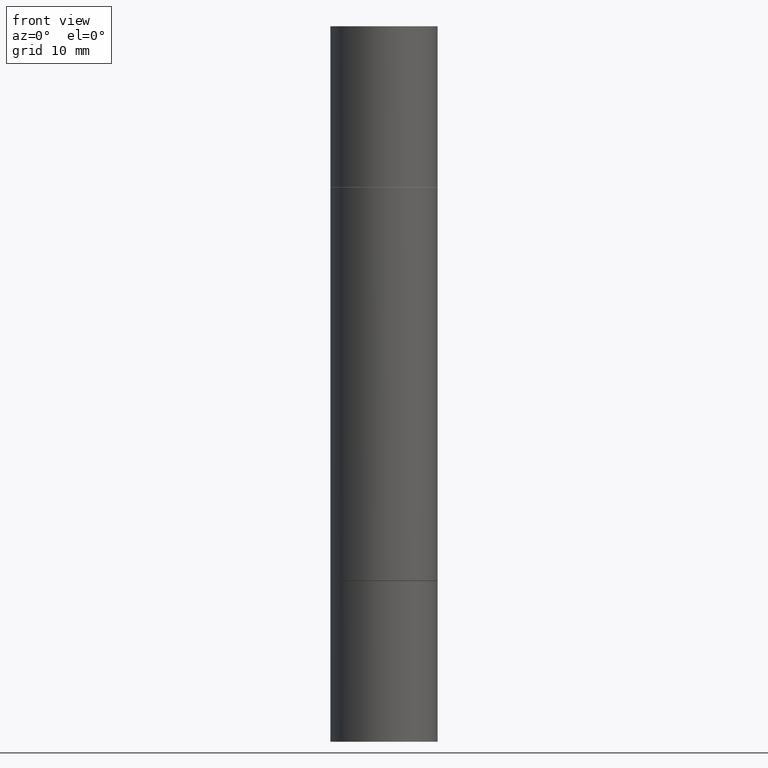
[diagram: clean part render]
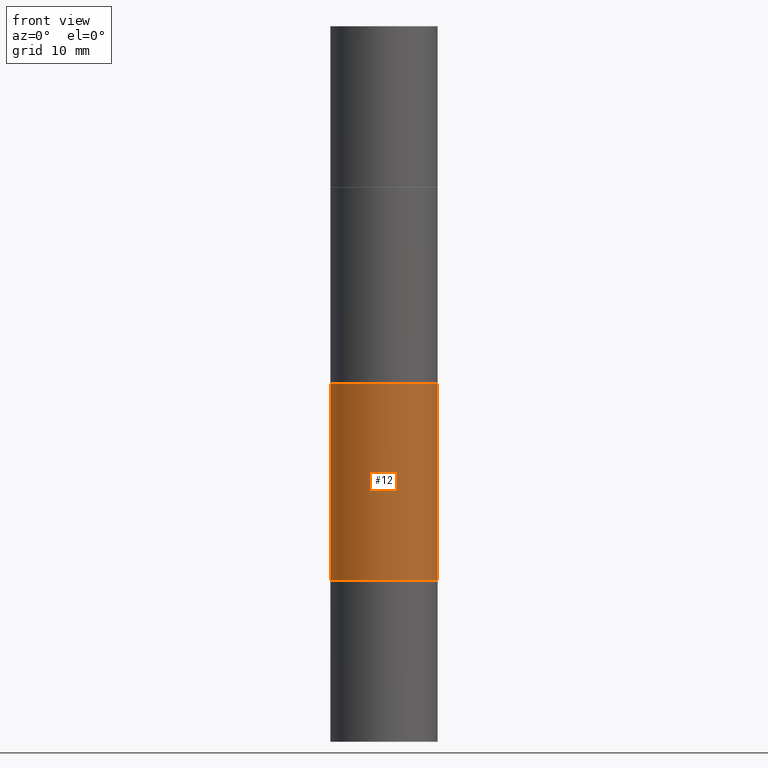
[diagram: same view with one face highlighted and labeled with its STEP entity id]
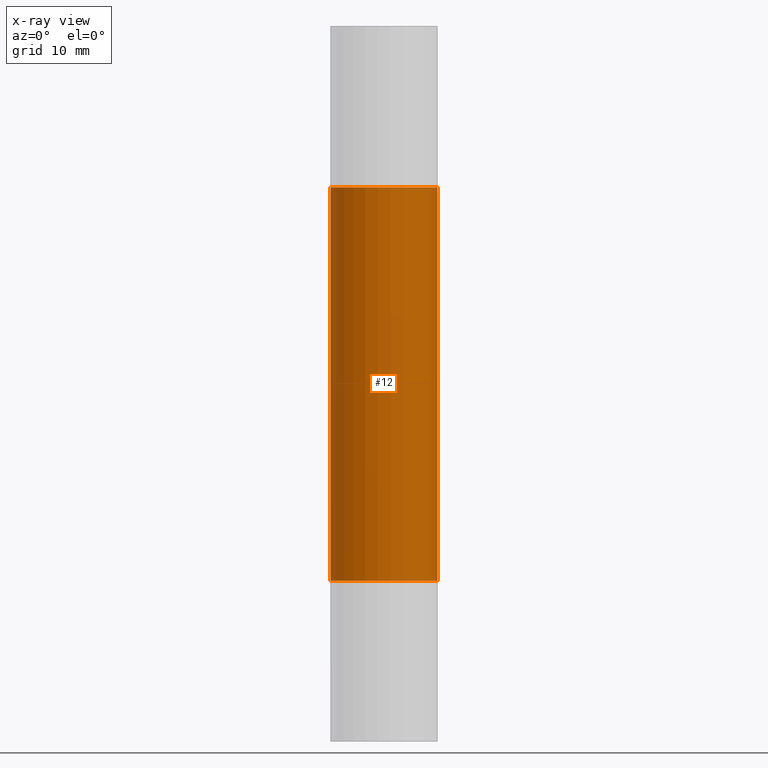
[diagram: x-ray of the same camera — body ghosted, the highlighted face saturated]
A machine part, front view. The second image highlights one B-rep face of the part: STEP entity #12.
The next image is the same camera in x-ray: the body ghosted, the highlighted face saturated — about 0% of this face is hidden behind the body in this view.
In plain terms, the highlighted cylindrical surface (partial cylindrical patch) has radius 4.7625 mm, axis along (-0, -0, -1).
Its self-contained STEP definition (entity closure, byte-faithful):
#5 = CARTESIAN_POINT ( 'NONE',  ( 0.1875000000000000278, -3.274041462884052574E-15, -0.5629999999999997229 ) ) ;
#12 = ADVANCED_FACE ( 'NONE', ( #600 ), #73, .T. ) ;
#28 = EDGE_CURVE ( 'NONE', #220, #373, #125, .T. ) ;
#59 = CARTESIAN_POINT ( 'NONE',  ( -0.1874999999999999722, -3.078008298971767937E-15, -1.936999999999999833 ) ) ;
#63 = CARTESIAN_POINT ( 'NONE',  ( 4.736873077580609355E-29, -1.964735960817877172E-15, -0.5629999999999997229 ) ) ;
#69 = ORIENTED_EDGE ( 'NONE', *, *, #398, .F. ) ;
#73 = CYLINDRICAL_SURFACE ( 'NONE', #607, 0.1874999999999999167 ) ;
#90 = CARTESIAN_POINT ( 'NONE',  ( 0.1875000000000000278, -8.072304855405348046E-15, -1.936999999999999833 ) ) ;
#105 = ORIENTED_EDGE ( 'NONE', *, *, #196, .T. ) ;
#125 = LINE ( 'NONE', #326, #434 ) ;
#146 = DIRECTION ( 'NONE',  ( -2.445468806185136597E-29, 3.491481338843145583E-15, 1.000000000000000000 ) ) ;
#152 = LINE ( 'NONE', #522, #319 ) ;
#153 = CIRCLE ( 'NONE', #678, 0.1875000000000000278 ) ;
#155 = ORIENTED_EDGE ( 'NONE', *, *, #28, .T. ) ;
#165 = EDGE_LOOP ( 'NONE', ( #69, #155, #105, #258 ) ) ;
#196 = EDGE_CURVE ( 'NONE', #373, #638, #417, .T. ) ;
#220 = VERTEX_POINT ( 'NONE', #404 ) ;
#258 = ORIENTED_EDGE ( 'NONE', *, *, #368, .F. ) ;
#264 = DIRECTION ( 'NONE',  ( 1.000000000000000000, -6.982962677686266711E-15, 0.000000000000000000 ) ) ;
#312 = DIRECTION ( 'NONE',  ( -2.445468806185136877E-29, -3.492890411551753071E-15, -1.000000000000000000 ) ) ;
#319 = VECTOR ( 'NONE', #312, 39.37007874015748143 ) ;
#321 = VERTEX_POINT ( 'NONE', #5 ) ;
#326 = CARTESIAN_POINT ( 'NONE',  ( -0.1874999999999999167, -7.444121313411459473E-15, -2.499999999999999556 ) ) ;
#361 = CARTESIAN_POINT ( 'NONE',  ( 4.736873077580609355E-29, -6.762999353339172249E-15, -1.936999999999999833 ) ) ;
#365 = AXIS2_PLACEMENT_3D ( 'NONE', #361, #146, #409 ) ;
#368 = EDGE_CURVE ( 'NONE', #321, #638, #152, .T. ) ;
#373 = VERTEX_POINT ( 'NONE', #59 ) ;
#382 = CARTESIAN_POINT ( 'NONE',  ( 0.000000000000000000, -8.730464687993621641E-15, -2.499999999999999556 ) ) ;
#398 = EDGE_CURVE ( 'NONE', #220, #321, #153, .T. ) ;
#404 = CARTESIAN_POINT ( 'NONE',  ( -0.1875000000000000278, -6.783925862357143136E-16, -0.5629999999999997229 ) ) ;
#409 = DIRECTION ( 'NONE',  ( 1.000000000000000000, -6.982962677686266711E-15, 0.000000000000000000 ) ) ;
#417 = CIRCLE ( 'NONE', #365, 0.1875000000000000278 ) ;
#421 = DIRECTION ( 'NONE',  ( 2.445468806185136597E-29, 3.492890411551752677E-15, 1.000000000000000000 ) ) ;
#434 = VECTOR ( 'NONE', #452, 39.37007874015748143 ) ;
#452 = DIRECTION ( 'NONE',  ( -2.445468806185136877E-29, -3.492890411551753071E-15, -1.000000000000000000 ) ) ;
#484 = DIRECTION ( 'NONE',  ( -2.445468806185136597E-29, -3.492890411551752677E-15, -1.000000000000000000 ) ) ;
#522 = CARTESIAN_POINT ( 'NONE',  ( 0.1874999999999999167, -1.003977019005979665E-14, -2.499999999999999556 ) ) ;
#546 = DIRECTION ( 'NONE',  ( 1.000000000000000000, -6.982962677686270655E-15, 0.000000000000000000 ) ) ;
#600 = FACE_OUTER_BOUND ( 'NONE', #165, .T. ) ;
#607 = AXIS2_PLACEMENT_3D ( 'NONE', #382, #484, #546 ) ;
#638 = VERTEX_POINT ( 'NONE', #90 ) ;
#678 = AXIS2_PLACEMENT_3D ( 'NONE', #63, #421, #264 ) ;